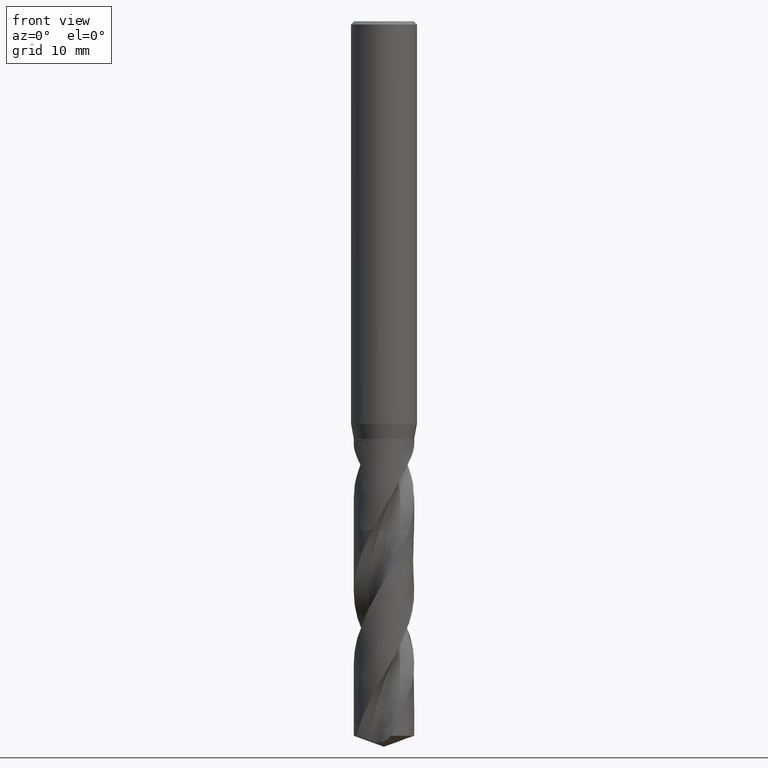
[diagram: clean part render]
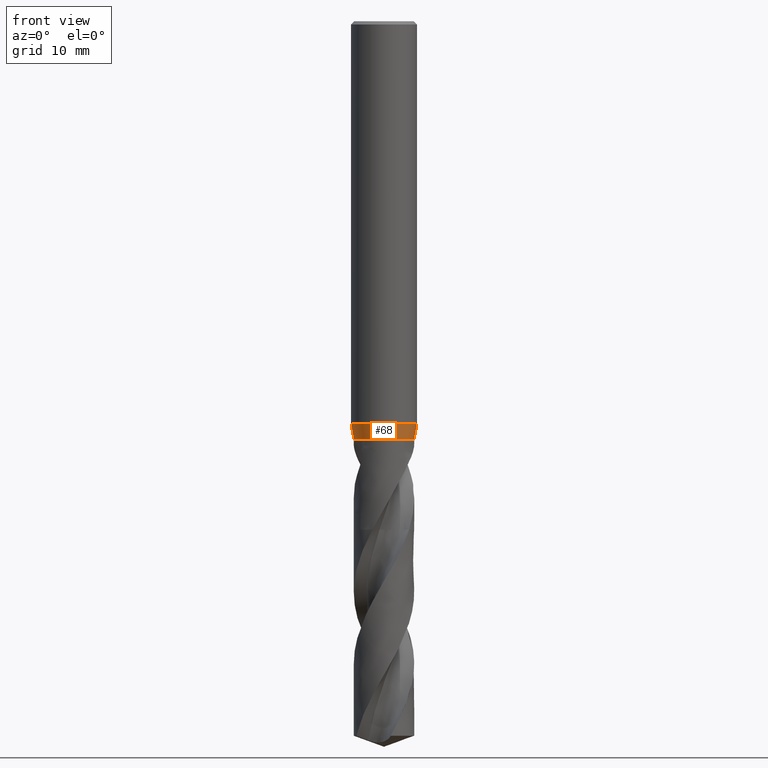
[diagram: same view with one face highlighted and labeled with its STEP entity id]
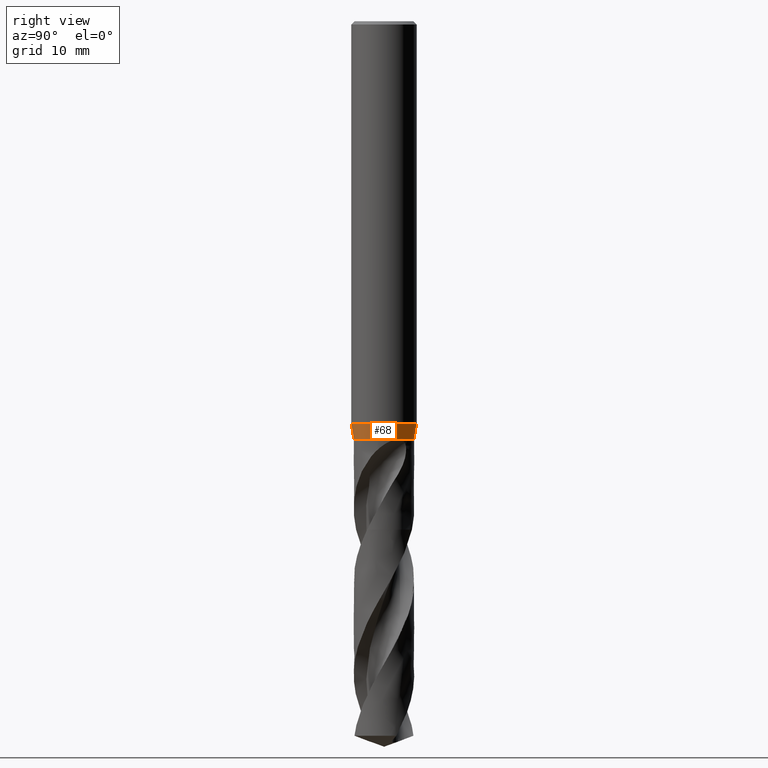
[diagram: same view with one face highlighted and labeled with its STEP entity id]
A machine part, front view. The second image highlights one B-rep face of the part: STEP entity #68.
A second angle (right view) of the same face is appended — the face is thin or edge-on in the first view.
In plain terms, the highlighted face is a freeform B-spline surface patch.
Its self-contained STEP definition (entity closure, byte-faithful):
#68 = ADVANCED_FACE('', (#69), #132, .T.);
#69 = FACE_OUTER_BOUND('', #70, .T.);
#70 = EDGE_LOOP('', (#71, #81, #88, #89, #98, #107, #116, #125));
#71 = ORIENTED_EDGE('', *, *, #72, .F.);
#72 = EDGE_CURVE('', #73, #75, #77, .T.);
#73 = VERTEX_POINT('', #74);
#74 = CARTESIAN_POINT('', (-3., 2.42529052103142E-15, -36.608));
#75 = VERTEX_POINT('', #76);
#76 = CARTESIAN_POINT('', (-2.75, 2.49521785326273E-15, -38.));
#77 = LINE('', #78, #79);
#78 = CARTESIAN_POINT('', (-3., 2.42529052103142E-15, -36.608));
#79 = VECTOR('', #80, 1.41427154394055);
#80 = DIRECTION('', (0.25, 6.99273322313136E-17, -1.392));
#81 = ORIENTED_EDGE('', *, *, #82, .T.);
#82 = EDGE_CURVE('', #73, #73, #83, .T.);
#83 = CIRCLE('', #84, 3.);
#84 = AXIS2_PLACEMENT_3D('', #85, #86, #87);
#85 = CARTESIAN_POINT('', (1.37258015309213E-31, 2.24159350115932E-15, -36.608));
#86 = DIRECTION('', (3.74939945665464E-33, 6.12323399573677E-17, -1.));
#87 = DIRECTION('', (-1., 6.12323399573677E-17, 0.));
#88 = ORIENTED_EDGE('', *, *, #72, .T.);
#89 = ORIENTED_EDGE('', *, *, #90, .F.);
#90 = EDGE_CURVE('', #91, #75, #93, .T.);
#91 = VERTEX_POINT('', #92);
#92 = CARTESIAN_POINT('', (-2.40712918948666, -1.32974774492056, -38.));
#93 = CIRCLE('', #94, 2.75);
#94 = AXIS2_PLACEMENT_3D('', #95, #96, #97);
#95 = CARTESIAN_POINT('', (1.42477179352876E-31, 2.32682891837997E-15, -38.));
#96 = DIRECTION('', (3.74939945665464E-33, 6.12323399573677E-17, -1.));
#97 = DIRECTION('', (-1., 6.12323399573677E-17, 0.));
#98 = ORIENTED_EDGE('', *, *, #99, .F.);
#99 = EDGE_CURVE('', #100, #91, #102, .T.);
#100 = VERTEX_POINT('', #101);
#101 = CARTESIAN_POINT('', (-2.40600145273723, -1.33178714869394, -38.));
#102 = CIRCLE('', #103, 2.75);
#103 = AXIS2_PLACEMENT_3D('', #104, #105, #106);
#104 = CARTESIAN_POINT('', (1.42477179352876E-31, 2.32682891837997E-15, -38.));
#105 = DIRECTION('', (3.74939945665464E-33, 6.12323399573677E-17, -1.));
#106 = DIRECTION('', (-1., 6.12323399573677E-17, 0.));
#107 = ORIENTED_EDGE('', *, *, #108, .F.);
#108 = EDGE_CURVE('', #109, #100, #111, .T.);
#109 = VERTEX_POINT('', #110);
#110 = CARTESIAN_POINT('', (2.40712918948739, 1.32974774491923, -38.));
#111 = CIRCLE('', #112, 2.75);
#112 = AXIS2_PLACEMENT_3D('', #113, #114, #115);
#113 = CARTESIAN_POINT('', (1.42477179352876E-31, 2.32682891837997E-15, -38.));
#114 = DIRECTION('', (3.74939945665464E-33, 6.12323399573677E-17, -1.));
#115 = DIRECTION('', (-1., 6.12323399573677E-17, 0.));
#116 = ORIENTED_EDGE('', *, *, #117, .F.);
#117 = EDGE_CURVE('', #118, #109, #120, .T.);
#118 = VERTEX_POINT('', #119);
#119 = CARTESIAN_POINT('', (2.40600145273649, 1.33178714869528, -38.));
#120 = CIRCLE('', #121, 2.75);
#121 = AXIS2_PLACEMENT_3D('', #122, #123, #124);
#122 = CARTESIAN_POINT('', (1.42477179352876E-31, 2.32682891837997E-15, -38.));
#123 = DIRECTION('', (3.74939945665464E-33, 6.12323399573677E-17, -1.));
#124 = DIRECTION('', (-1., 6.12323399573677E-17, 0.));
#125 = ORIENTED_EDGE('', *, *, #126, .F.);
#126 = EDGE_CURVE('', #75, #118, #127, .T.);
#127 = CIRCLE('', #128, 2.75);
#128 = AXIS2_PLACEMENT_3D('', #129, #130, #131);
#129 = CARTESIAN_POINT('', (1.42477179352876E-31, 2.32682891837997E-15, -38.));
#130 = DIRECTION('', (3.74939945665464E-33, 6.12323399573677E-17, -1.));
#131 = DIRECTION('', (-1., 6.12323399573677E-17, 0.));
#132 = (
   BOUNDED_SURFACE ()
   B_SPLINE_SURFACE (2, 1, ((#133, #134), (#135, #136), (#137, #138), (#139, #140), (#141, #142), (#143, #144), (#145, #146), (#147, #148), (#149, #150)), .UNSPECIFIED., .T., .F., .U.)
   B_SPLINE_SURFACE_WITH_KNOTS ((3, 2, 2, 2, 3), (2, 2), (0., 0.25, 0.5, 0.75, 1.), (0., 1.), .UNSPECIFIED.)
   GEOMETRIC_REPRESENTATION_ITEM ()
   RATIONAL_B_SPLINE_SURFACE (((1., 1.), (0.707106781186548, 0.707106781186548), (1., 1.), (0.707106781186548, 0.707106781186548), (1., 1.), (0.707106781186548, 0.707106781186548), (1., 1.), (0.707106781186548, 0.707106781186548), (1., 1.)))
   REPRESENTATION_ITEM ('')
   SURFACE ()
);
#133 = CARTESIAN_POINT('', (-3., 2.42529052103142E-15, -36.608));
#134 = CARTESIAN_POINT('', (-2.75, 2.49521785326273E-15, -38.));
#135 = CARTESIAN_POINT('', (-3., 3., -36.608));
#136 = CARTESIAN_POINT('', (-2.75, 2.75, -38.));
#137 = CARTESIAN_POINT('', (1.23259516440783E-31, 3., -36.608));
#138 = CARTESIAN_POINT('', (1.23259516440783E-31, 2.75, -38.));
#139 = CARTESIAN_POINT('', (3., 3., -36.608));
#140 = CARTESIAN_POINT('', (2.75, 2.75, -38.));
#141 = CARTESIAN_POINT('', (3., 2.42529052103142E-15, -36.608));
#142 = CARTESIAN_POINT('', (2.75, 2.49521785326273E-15, -38.));
#143 = CARTESIAN_POINT('', (3., -3., -36.608));
#144 = CARTESIAN_POINT('', (2.75, -2.75, -38.));
#145 = CARTESIAN_POINT('', (3.67394039744206E-16, -3., -36.608));
#146 = CARTESIAN_POINT('', (3.36777869765522E-16, -2.75, -38.));
#147 = CARTESIAN_POINT('', (-3., -3., -36.608));
#148 = CARTESIAN_POINT('', (-2.75, -2.75, -38.));
#149 = CARTESIAN_POINT('', (-3., 2.42529052103142E-15, -36.608));
#150 = CARTESIAN_POINT('', (-2.75, 2.49521785326273E-15, -38.));